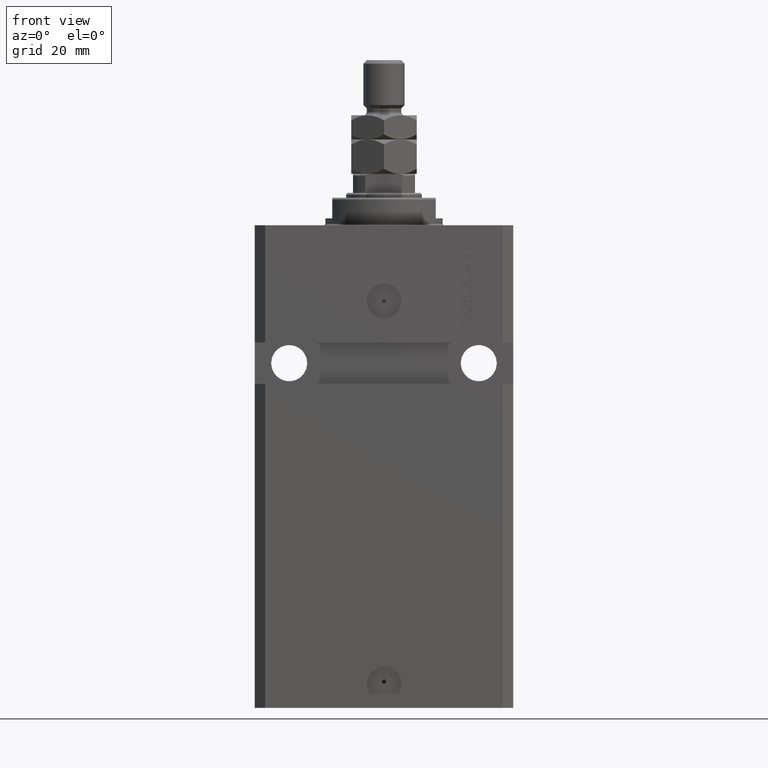
[diagram: clean part render]
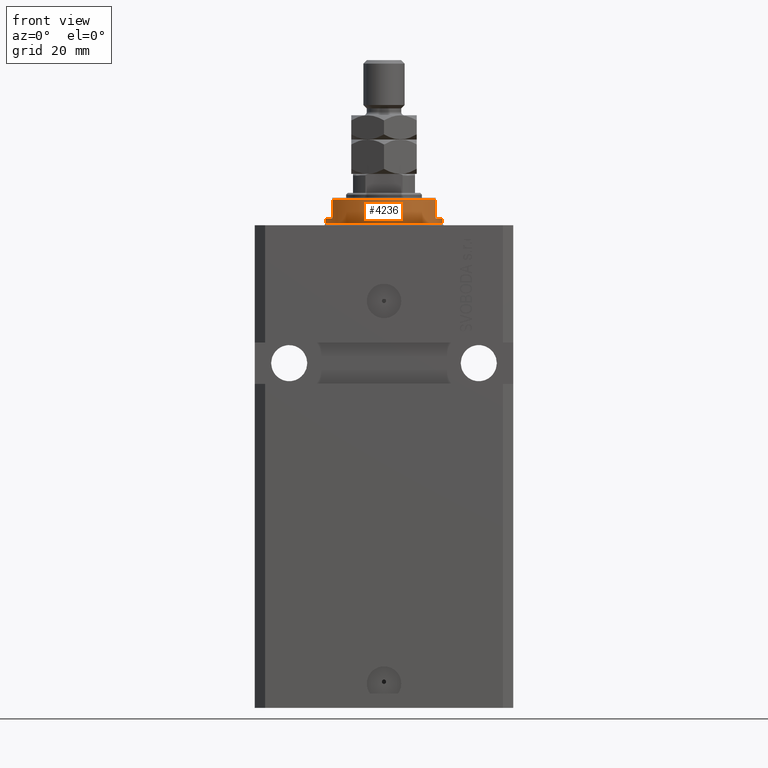
[diagram: same view with one face highlighted and labeled with its STEP entity id]
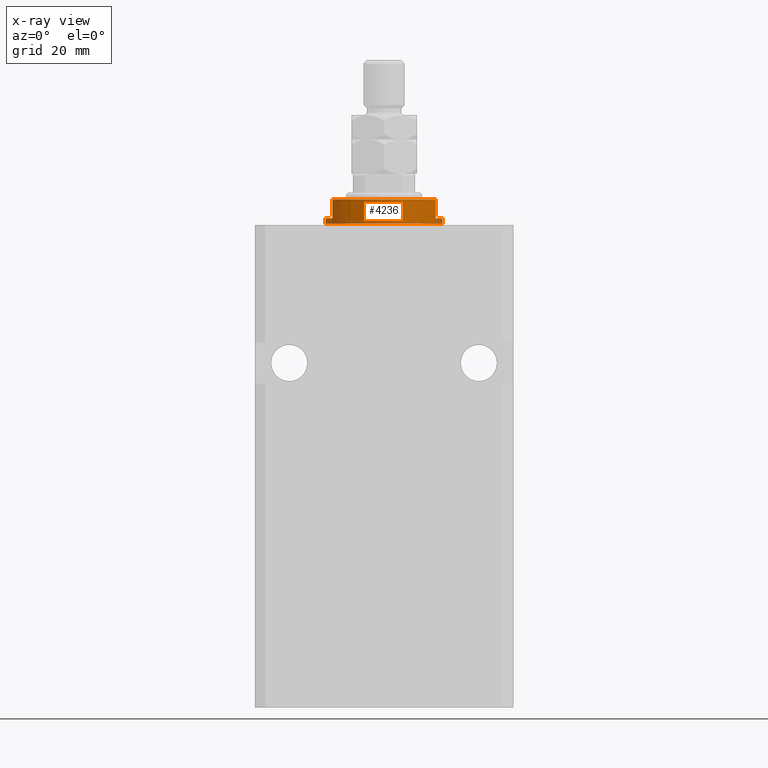
[diagram: x-ray of the same camera — body ghosted, the highlighted face saturated]
A machine part, front view. The second image highlights one B-rep face of the part: STEP entity #4236.
The next image is the same camera in x-ray: the body ghosted, the highlighted face saturated — about 0% of this face is hidden behind the body in this view.
In plain terms, the highlighted cylindrical surface (partial cylindrical patch) has radius 17 mm, axis along (0, 0, -1).
Its self-contained STEP definition (entity closure, byte-faithful):
#390 = CARTESIAN_POINT ( 'NONE',  ( 0.000000000000000000, 0.000000000000000000, -2.000000000000000000 ) ) ;
#816 = VECTOR ( 'NONE', #16558, 1000.000000000000000 ) ;
#966 = EDGE_CURVE ( 'NONE', #9303, #7568, #33081, .T. ) ;
#1343 = DIRECTION ( 'NONE',  ( -1.000000000000000000, 0.000000000000000000, 0.000000000000000000 ) ) ;
#3731 = ORIENTED_EDGE ( 'NONE', *, *, #25406, .F. ) ;
#4236 = ADVANCED_FACE ( 'NONE', ( #18723 ), #33666, .T. ) ;
#4511 = DIRECTION ( 'NONE',  ( -0.000000000000000000, -0.000000000000000000, 1.000000000000000000 ) ) ;
#5467 = CIRCLE ( 'NONE', #46896, 17.00000000000000000 ) ;
#6844 = EDGE_CURVE ( 'NONE', #18863, #45877, #37092, .T. ) ;
#7248 = CARTESIAN_POINT ( 'NONE',  ( 15.00000000000000000, -8.000000000000001776, -7.500000000000013323 ) ) ;
#7397 = VERTEX_POINT ( 'NONE', #42785 ) ;
#7568 = VERTEX_POINT ( 'NONE', #31901 ) ;
#8977 = DIRECTION ( 'NONE',  ( 0.000000000000000000, 0.000000000000000000, -1.000000000000000000 ) ) ;
#9303 = VERTEX_POINT ( 'NONE', #25951 ) ;
#11118 = EDGE_CURVE ( 'NONE', #7397, #22983, #29403, .T. ) ;
#11947 = AXIS2_PLACEMENT_3D ( 'NONE', #390, #12104, #1343 ) ;
#12104 = DIRECTION ( 'NONE',  ( 0.000000000000000000, 0.000000000000000000, -1.000000000000000000 ) ) ;
#12159 = CARTESIAN_POINT ( 'NONE',  ( 17.00000000000000000, 0.000000000000000000, -8.000000000000000000 ) ) ;
#12260 = VERTEX_POINT ( 'NONE', #16254 ) ;
#12838 = CARTESIAN_POINT ( 'NONE',  ( 0.000000000000000000, 0.000000000000000000, -2.000000000000000000 ) ) ;
#13440 = VECTOR ( 'NONE', #21262, 1000.000000000000000 ) ;
#14280 = ORIENTED_EDGE ( 'NONE', *, *, #35689, .F. ) ;
#16254 = CARTESIAN_POINT ( 'NONE',  ( -17.00000000000000000, 2.081899558550500280E-15, -0.5000000000000004441 ) ) ;
#16558 = DIRECTION ( 'NONE',  ( -0.000000000000000000, -0.000000000000000000, 1.000000000000000000 ) ) ;
#16659 = DIRECTION ( 'NONE',  ( 1.000000000000000000, 0.000000000000000000, 0.000000000000000000 ) ) ;
#17119 = ORIENTED_EDGE ( 'NONE', *, *, #11118, .F. ) ;
#17829 = CARTESIAN_POINT ( 'NONE',  ( -17.00000000000000000, 2.081899558550500280E-15, -8.000000000000000000 ) ) ;
#18465 = AXIS2_PLACEMENT_3D ( 'NONE', #12838, #44165, #48072 ) ;
#18723 = FACE_OUTER_BOUND ( 'NONE', #21094, .T. ) ;
#18863 = VERTEX_POINT ( 'NONE', #30510 ) ;
#19436 = CARTESIAN_POINT ( 'NONE',  ( 0.000000000000000000, 0.000000000000000000, -8.000000000000000000 ) ) ;
#20128 = ORIENTED_EDGE ( 'NONE', *, *, #44790, .T. ) ;
#20986 = ORIENTED_EDGE ( 'NONE', *, *, #6844, .T. ) ;
#21094 = EDGE_LOOP ( 'NONE', ( #3731, #17119, #38051, #20986, #14280, #28358, #20128, #38620 ) ) ;
#21262 = DIRECTION ( 'NONE',  ( -0.000000000000000000, -0.000000000000000000, 1.000000000000000000 ) ) ;
#21918 = VECTOR ( 'NONE', #8977, 1000.000000000000000 ) ;
#22983 = VERTEX_POINT ( 'NONE', #28294 ) ;
#23339 = CARTESIAN_POINT ( 'NONE',  ( 15.00000000000000000, -8.000000000000001776, -8.000000000000000000 ) ) ;
#24927 = LINE ( 'NONE', #17829, #13440 ) ;
#25406 = EDGE_CURVE ( 'NONE', #22983, #12260, #24927, .T. ) ;
#25951 = CARTESIAN_POINT ( 'NONE',  ( 17.00000000000000000, 0.000000000000000000, -2.000000000000000000 ) ) ;
#26961 = VECTOR ( 'NONE', #33663, 1000.000000000000000 ) ;
#27197 = CARTESIAN_POINT ( 'NONE',  ( 0.000000000000000000, 0.000000000000000000, -0.5000000000000004441 ) ) ;
#28294 = CARTESIAN_POINT ( 'NONE',  ( -17.00000000000000000, 2.081899558550500280E-15, -2.000000000000000000 ) ) ;
#28358 = ORIENTED_EDGE ( 'NONE', *, *, #966, .F. ) ;
#28937 = DIRECTION ( 'NONE',  ( 0.000000000000000000, 0.000000000000000000, 1.000000000000000000 ) ) ;
#29403 = CIRCLE ( 'NONE', #18465, 17.00000000000000000 ) ;
#29587 = VERTEX_POINT ( 'NONE', #48381 ) ;
#30510 = CARTESIAN_POINT ( 'NONE',  ( -15.00000000000000000, -8.000000000000001776, -7.500000000000014211 ) ) ;
#31901 = CARTESIAN_POINT ( 'NONE',  ( 14.99999999999999645, -8.000000000000003553, -2.000000000000000000 ) ) ;
#32371 = CARTESIAN_POINT ( 'NONE',  ( 0.000000000000000000, 0.000000000000000000, -7.500000000000013323 ) ) ;
#33081 = CIRCLE ( 'NONE', #11947, 17.00000000000000000 ) ;
#33663 = DIRECTION ( 'NONE',  ( 0.000000000000000000, 0.000000000000000000, -1.000000000000000000 ) ) ;
#33666 = CYLINDRICAL_SURFACE ( 'NONE', #42467, 17.00000000000000000 ) ;
#33908 = DIRECTION ( 'NONE',  ( 1.000000000000000000, 0.000000000000000000, 0.000000000000000000 ) ) ;
#34144 = LINE ( 'NONE', #23339, #26961 ) ;
#35187 = LINE ( 'NONE', #12159, #816 ) ;
#35689 = EDGE_CURVE ( 'NONE', #7568, #45877, #34144, .T. ) ;
#37092 = CIRCLE ( 'NONE', #46444, 17.00000000000000000 ) ;
#37161 = LINE ( 'NONE', #41798, #21918 ) ;
#38051 = ORIENTED_EDGE ( 'NONE', *, *, #44734, .T. ) ;
#38207 = DIRECTION ( 'NONE',  ( -0.000000000000000000, -0.000000000000000000, -1.000000000000000000 ) ) ;
#38620 = ORIENTED_EDGE ( 'NONE', *, *, #43642, .T. ) ;
#41798 = CARTESIAN_POINT ( 'NONE',  ( -15.00000000000000000, -8.000000000000001776, -8.000000000000000000 ) ) ;
#42467 = AXIS2_PLACEMENT_3D ( 'NONE', #19436, #4511, #33908 ) ;
#42785 = CARTESIAN_POINT ( 'NONE',  ( -14.99999999999999645, -8.000000000000003553, -2.000000000000000000 ) ) ;
#43642 = EDGE_CURVE ( 'NONE', #29587, #12260, #5467, .T. ) ;
#43856 = DIRECTION ( 'NONE',  ( -1.000000000000000000, 0.000000000000000000, 0.000000000000000000 ) ) ;
#44165 = DIRECTION ( 'NONE',  ( 0.000000000000000000, 0.000000000000000000, -1.000000000000000000 ) ) ;
#44734 = EDGE_CURVE ( 'NONE', #7397, #18863, #37161, .T. ) ;
#44790 = EDGE_CURVE ( 'NONE', #9303, #29587, #35187, .T. ) ;
#45877 = VERTEX_POINT ( 'NONE', #7248 ) ;
#46444 = AXIS2_PLACEMENT_3D ( 'NONE', #32371, #28937, #43856 ) ;
#46896 = AXIS2_PLACEMENT_3D ( 'NONE', #27197, #38207, #16659 ) ;
#48072 = DIRECTION ( 'NONE',  ( -1.000000000000000000, 0.000000000000000000, 0.000000000000000000 ) ) ;
#48381 = CARTESIAN_POINT ( 'NONE',  ( 17.00000000000000000, 0.000000000000000000, -0.5000000000000004441 ) ) ;